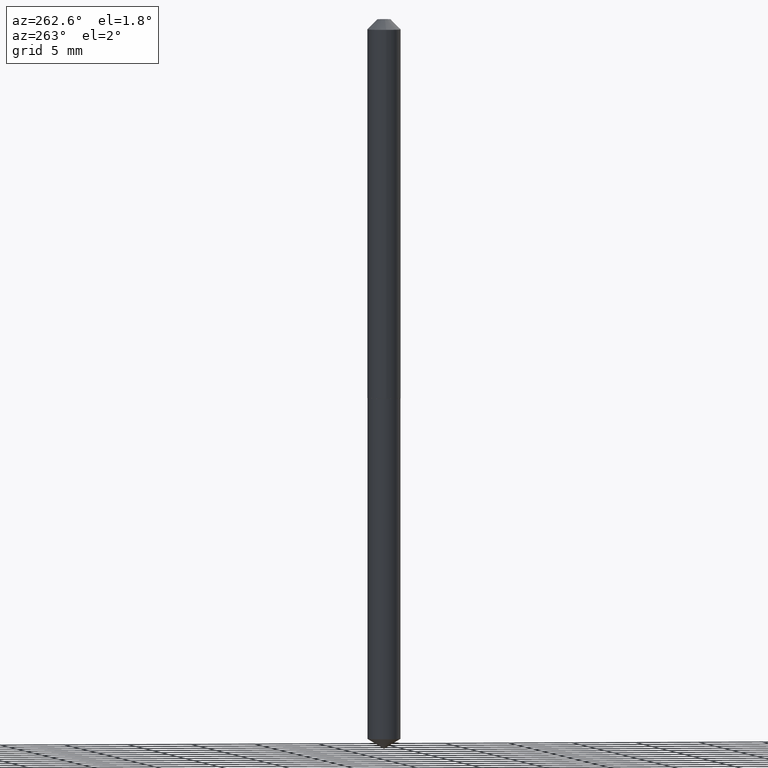
[diagram: clean part render]
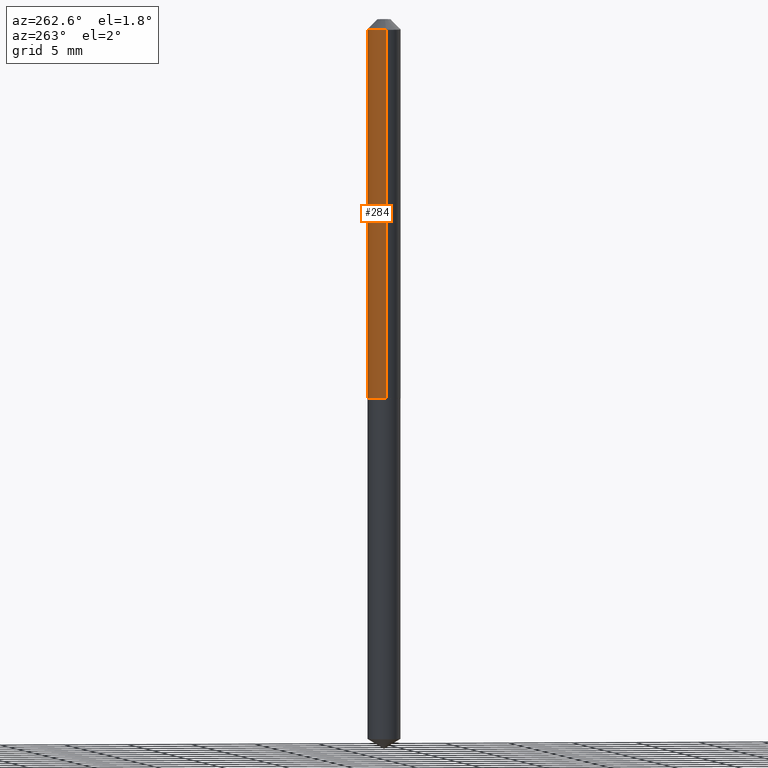
[diagram: same view with one face highlighted and labeled with its STEP entity id]
A machine part, auxiliary view. The second image highlights one B-rep face of the part: STEP entity #284.
In plain terms, the highlighted cylindrical surface (edge-blend (fillet) strip) has radius 1.3005 mm, axis along (-0, 0, 1).
Its self-contained STEP definition (entity closure, byte-faithful):
#13 = DIRECTION ( 'NONE',  ( -2.445468806185136877E-29, 3.491481338843145188E-15, 1.000000000000000000 ) ) ;
#16 = CARTESIAN_POINT ( 'NONE',  ( -0.05120000000000007184, 3.637978807091718056E-16, -2.518494766210515431E-30 ) ) ;
#30 = VECTOR ( 'NONE', #13, 39.37007874015748143 ) ;
#58 = AXIS2_PLACEMENT_3D ( 'NONE', #192, #312, #310 ) ;
#76 = EDGE_LOOP ( 'NONE', ( #317, #77, #226, #90 ) ) ;
#77 = ORIENTED_EDGE ( 'NONE', *, *, #236, .T. ) ;
#83 = DIRECTION ( 'NONE',  ( 1.000000000000000000, -6.982962677686267499E-15, 0.000000000000000000 ) ) ;
#90 = ORIENTED_EDGE ( 'NONE', *, *, #220, .F. ) ;
#100 = FACE_OUTER_BOUND ( 'NONE', #76, .T. ) ;
#103 = VERTEX_POINT ( 'NONE', #386 ) ;
#108 = VERTEX_POINT ( 'NONE', #306 ) ;
#125 = DIRECTION ( 'NONE',  ( -2.445468806185136877E-29, 3.491481338843145188E-15, 1.000000000000000000 ) ) ;
#176 = CIRCLE ( 'NONE', #261, 0.05120000000000001633 ) ;
#179 = EDGE_CURVE ( 'NONE', #345, #103, #280, .T. ) ;
#192 = CARTESIAN_POINT ( 'NONE',  ( 0.000000000000000000, 0.000000000000000000, 0.000000000000000000 ) ) ;
#218 = CYLINDRICAL_SURFACE ( 'NONE', #58, 0.05120000000000007184 ) ;
#220 = EDGE_CURVE ( 'NONE', #345, #108, #239, .T. ) ;
#226 = ORIENTED_EDGE ( 'NONE', *, *, #377, .F. ) ;
#231 = DIRECTION ( 'NONE',  ( -2.445468806185136597E-29, 3.491481338843145583E-15, 1.000000000000000000 ) ) ;
#232 = DIRECTION ( 'NONE',  ( -2.445468806185136597E-29, 3.491481338843145583E-15, 1.000000000000000000 ) ) ;
#236 = EDGE_CURVE ( 'NONE', #103, #300, #273, .T. ) ;
#239 = LINE ( 'NONE', #305, #30 ) ;
#261 = AXIS2_PLACEMENT_3D ( 'NONE', #354, #231, #83 ) ;
#273 = LINE ( 'NONE', #16, #368 ) ;
#280 = CIRCLE ( 'NONE', #287, 0.05120000000000014123 ) ;
#284 = ADVANCED_FACE ( 'NONE', ( #100 ), #218, .T. ) ;
#287 = AXIS2_PLACEMENT_3D ( 'NONE', #299, #232, #326 ) ;
#299 = CARTESIAN_POINT ( 'NONE',  ( 2.848726612325065508E-29, -4.067226611618379942E-15, -1.164899999999999824 ) ) ;
#300 = VERTEX_POINT ( 'NONE', #375 ) ;
#305 = CARTESIAN_POINT ( 'NONE',  ( 0.05120000000000007184, -3.575276890975373415E-16, 2.496602509207522887E-30 ) ) ;
#306 = CARTESIAN_POINT ( 'NONE',  ( 0.05120000000000001633, -4.666364809363860477E-16, -0.03125000000000020817 ) ) ;
#310 = DIRECTION ( 'NONE',  ( 1.000000000000000000, -6.982962677686266711E-15, 4.876176775795936353E-29 ) ) ;
#312 = DIRECTION ( 'NONE',  ( -2.445468806185136597E-29, 3.491481338843145583E-15, 1.000000000000000000 ) ) ;
#317 = ORIENTED_EDGE ( 'NONE', *, *, #179, .T. ) ;
#326 = DIRECTION ( 'NONE',  ( 1.000000000000000000, -6.982962677686273021E-15, 0.000000000000000000 ) ) ;
#345 = VERTEX_POINT ( 'NONE', #363 ) ;
#354 = CARTESIAN_POINT ( 'NONE',  ( 7.642090019328602662E-31, -1.091087918388490267E-16, -0.03125000000000020817 ) ) ;
#363 = CARTESIAN_POINT ( 'NONE',  ( 0.05120000000000014123, -4.424754300715918073E-15, -1.164899999999999824 ) ) ;
#368 = VECTOR ( 'NONE', #125, 39.37007874015748143 ) ;
#375 = CARTESIAN_POINT ( 'NONE',  ( -0.05120000000000001633, -1.724369821019441680E-15, -0.03125000000000020817 ) ) ;
#377 = EDGE_CURVE ( 'NONE', #108, #300, #176, .T. ) ;
#386 = CARTESIAN_POINT ( 'NONE',  ( -0.05120000000000014123, -3.703428730909207693E-15, -1.164899999999999824 ) ) ;